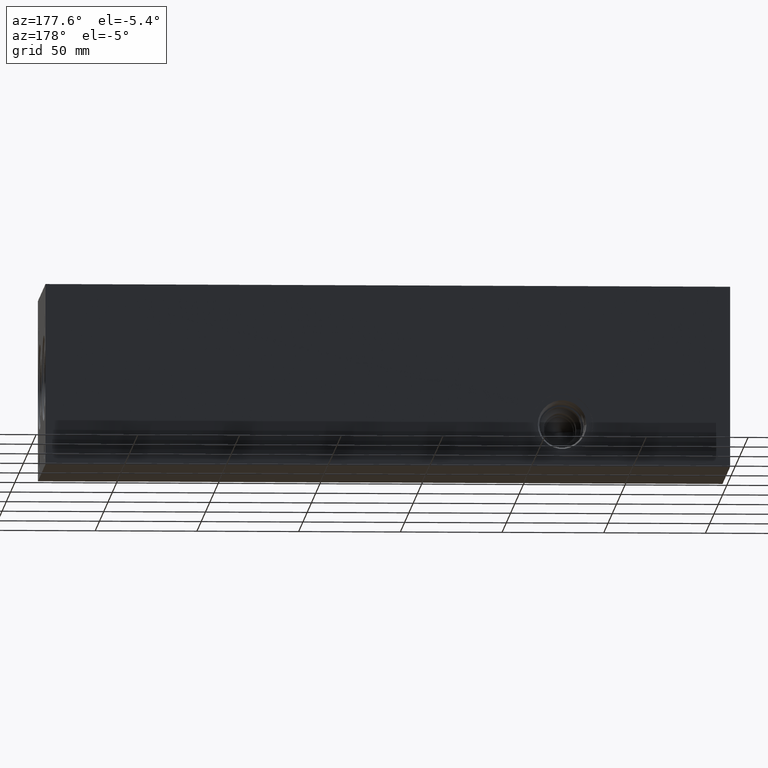
[diagram: clean part render]
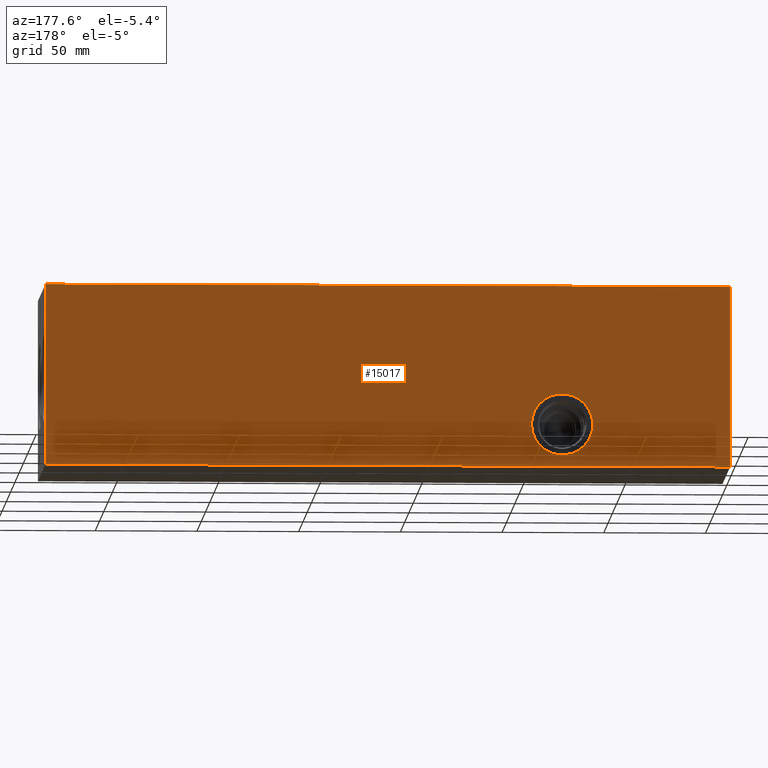
[diagram: same view with one face highlighted and labeled with its STEP entity id]
A machine part, auxiliary view. The second image highlights one B-rep face of the part: STEP entity #15017.
In plain terms, the highlighted planar face has unit normal (0, 1, 0).
Its self-contained STEP definition (entity closure, byte-faithful):
#226=CIRCLE('',#15420,15.08);
#227=CIRCLE('',#15421,15.08);
#701=FACE_BOUND('',#2975,.T.);
#2090=FACE_OUTER_BOUND('',#2974,.T.);
#2974=EDGE_LOOP('',(#13241,#13242,#13243,#13244));
#2975=EDGE_LOOP('',(#13245,#13246));
#3061=LINE('',#19531,#4358);
#3123=LINE('',#19809,#4420);
#4299=LINE('',#26144,#5596);
#4300=LINE('',#26145,#5597);
#4358=VECTOR('',#16113,10.);
#4420=VECTOR('',#16229,10.);
#5596=VECTOR('',#19265,10.);
#5597=VECTOR('',#19266,10.);
#5647=VERTEX_POINT('',#19528);
#5648=VERTEX_POINT('',#19530);
#5706=VERTEX_POINT('',#19802);
#5709=VERTEX_POINT('',#19807);
#6634=VERTEX_POINT('',#24961);
#6635=VERTEX_POINT('',#24962);
#7116=EDGE_CURVE('',#5647,#5648,#3061,.T.);
#7202=EDGE_CURVE('',#5706,#5709,#3123,.T.);
#8580=EDGE_CURVE('',#6634,#6635,#226,.T.);
#8581=EDGE_CURVE('',#6635,#6634,#227,.T.);
#9131=EDGE_CURVE('',#5647,#5706,#4299,.T.);
#9132=EDGE_CURVE('',#5648,#5709,#4300,.T.);
#13241=ORIENTED_EDGE('',*,*,#9131,.T.);
#13242=ORIENTED_EDGE('',*,*,#7202,.T.);
#13243=ORIENTED_EDGE('',*,*,#9132,.F.);
#13244=ORIENTED_EDGE('',*,*,#7116,.F.);
#13245=ORIENTED_EDGE('',*,*,#8580,.T.);
#13246=ORIENTED_EDGE('',*,*,#8581,.T.);
#13707=PLANE('',#16011);
#15017=ADVANCED_FACE('',(#2090,#701),#13707,.T.);
#15420=AXIS2_PLACEMENT_3D('',#24963,#17899,#17900);
#15421=AXIS2_PLACEMENT_3D('',#24964,#17901,#17902);
#16011=AXIS2_PLACEMENT_3D('',#26143,#19263,#19264);
#16113=DIRECTION('',(0.,0.,1.));
#16229=DIRECTION('',(0.,0.,1.));
#17899=DIRECTION('center_axis',(0.,-1.,0.));
#17900=DIRECTION('ref_axis',(1.,0.,0.));
#17901=DIRECTION('center_axis',(0.,-1.,0.));
#17902=DIRECTION('ref_axis',(1.,0.,0.));
#19263=DIRECTION('center_axis',(0.,1.,0.));
#19264=DIRECTION('ref_axis',(-1.,0.,0.));
#19265=DIRECTION('',(-1.,0.,0.));
#19266=DIRECTION('',(-1.,0.,0.));
#19528=CARTESIAN_POINT('',(336.55,88.9,0.));
#19530=CARTESIAN_POINT('',(336.55,88.9,88.9));
#19531=CARTESIAN_POINT('',(336.55,88.9,0.));
#19802=CARTESIAN_POINT('',(0.,88.9,0.));
#19807=CARTESIAN_POINT('',(0.,88.9,88.9));
#19809=CARTESIAN_POINT('',(0.,88.9,0.));
#24961=CARTESIAN_POINT('',(97.63,88.9,20.6502));
#24962=CARTESIAN_POINT('',(67.47,88.9,20.6502));
#24963=CARTESIAN_POINT('Origin',(82.55,88.9,20.6502));
#24964=CARTESIAN_POINT('Origin',(82.55,88.9,20.6502));
#26143=CARTESIAN_POINT('Origin',(336.55,88.9,0.));
#26144=CARTESIAN_POINT('',(336.55,88.9,0.));
#26145=CARTESIAN_POINT('',(336.55,88.9,88.9));